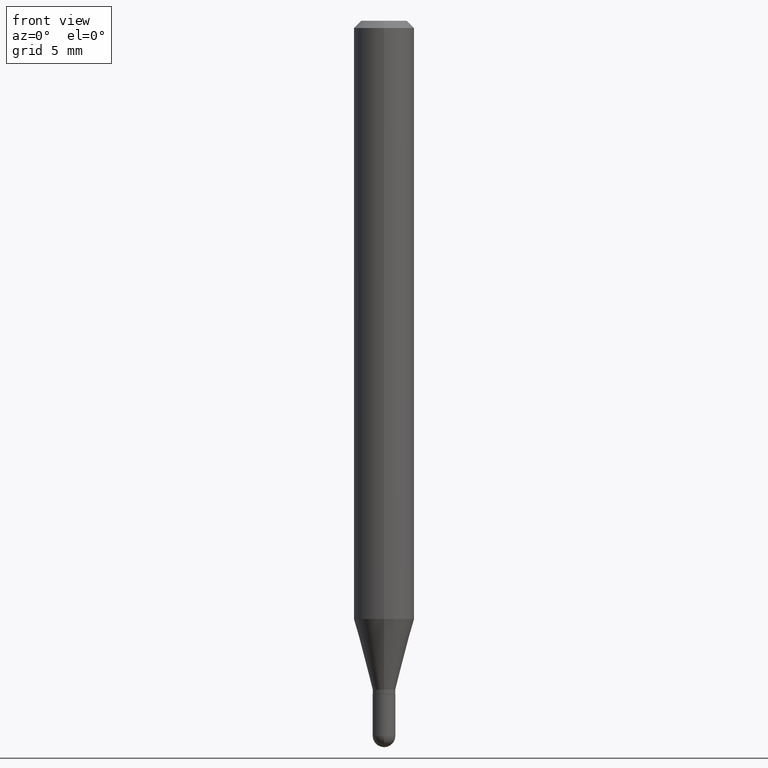
[diagram: clean part render]
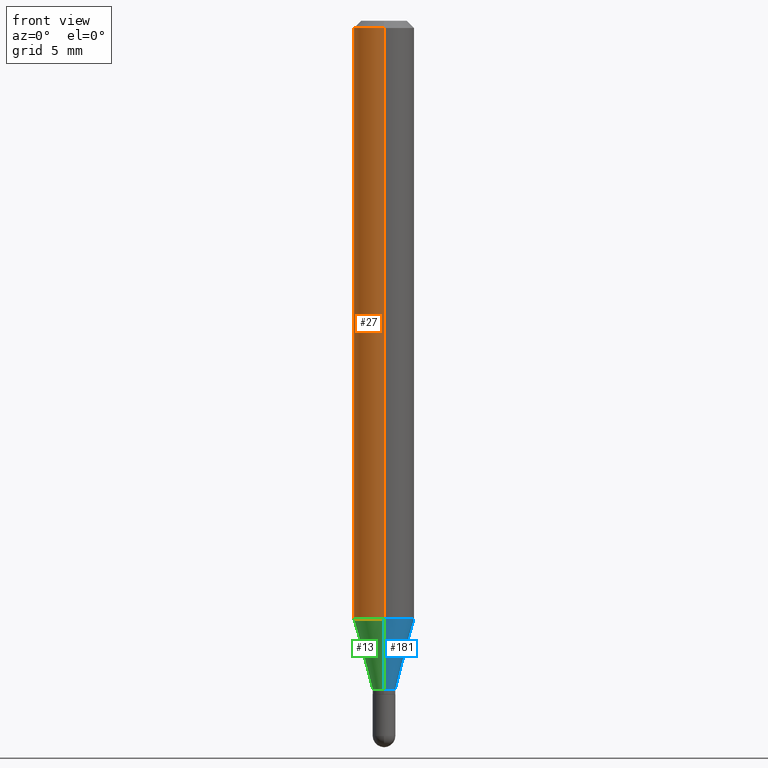
[diagram: same view with three faces highlighted in distinct colors, each labeled with its STEP entity id]
A machine part, front view with three faces highlighted in distinct colors.
Their STEP definitions:

[orange] entity #27 — the highlighted cylindrical surface (edge-blend (fillet) strip) has radius 1.5875 mm, axis along (-0, 0, 1).
#9 = DIRECTION ( 'NONE',  ( -2.445355371012872805E-29, 3.491643784466156312E-15, 1.000000000000000000 ) ) ;
#17 = VECTOR ( 'NONE', #186, 39.37007874015748143 ) ;
#27 = ADVANCED_FACE ( 'NONE', ( #443 ), #206, .T. ) ;
#54 = DIRECTION ( 'NONE',  ( -2.445355371012872805E-29, 3.491643784466156312E-15, 1.000000000000000000 ) ) ;
#76 = CARTESIAN_POINT ( 'NONE',  ( 3.020658028844344291E-29, -4.313099828530658848E-15, -1.235263415964436895 ) ) ;
#91 = DIRECTION ( 'NONE',  ( -6.982962677686265133E-15, -1.000000000000000000, 3.491643784466155918E-15 ) ) ;
#95 = CIRCLE ( 'NONE', #409, 0.06250000000000001388 ) ;
#97 = VECTOR ( 'NONE', #54, 39.37007874015748143 ) ;
#121 = VERTEX_POINT ( 'NONE', #122 ) ;
#122 = CARTESIAN_POINT ( 'NONE',  ( -4.364351673553615941E-16, -0.06250000000000432987, -1.235263415964436673 ) ) ;
#159 = EDGE_CURVE ( 'NONE', #121, #190, #315, .T. ) ;
#164 = CARTESIAN_POINT ( 'NONE',  ( -4.364351673553916694E-16, -0.06250000000000001388, 2.182277365291347942E-16 ) ) ;
#186 = DIRECTION ( 'NONE',  ( -2.445355371012872805E-29, 3.491643784466156312E-15, 1.000000000000000000 ) ) ;
#188 = CARTESIAN_POINT ( 'NONE',  ( 4.440892098500626162E-16, 0.06250000000000001388, -2.182277365291347942E-16 ) ) ;
#190 = VERTEX_POINT ( 'NONE', #260 ) ;
#193 = VERTEX_POINT ( 'NONE', #371 ) ;
#206 = CYLINDRICAL_SURFACE ( 'NONE', #419, 0.06250000000000001388 ) ;
#218 = DIRECTION ( 'NONE',  ( -2.445355371012872805E-29, 3.491643784466156312E-15, 1.000000000000000000 ) ) ;
#222 = DIRECTION ( 'NONE',  ( -6.982962677686265922E-15, -1.000000000000000000, 3.483106191921934765E-15 ) ) ;
#225 = ORIENTED_EDGE ( 'NONE', *, *, #381, .T. ) ;
#229 = DIRECTION ( 'NONE',  ( -2.445355371012872805E-29, 3.491643784466156312E-15, 1.000000000000000000 ) ) ;
#231 = CARTESIAN_POINT ( 'NONE',  ( 4.440892098500924943E-16, 0.06249999999999566319, -1.235263415964437339 ) ) ;
#246 = CARTESIAN_POINT ( 'NONE',  ( 0.000000000000000000, 0.000000000000000000, 0.000000000000000000 ) ) ;
#260 = CARTESIAN_POINT ( 'NONE',  ( -4.364351673553913736E-16, -0.06250000000000006939, -0.01500000000000056496 ) ) ;
#264 = EDGE_CURVE ( 'NONE', #193, #190, #95, .T. ) ;
#266 = CARTESIAN_POINT ( 'NONE',  ( 3.668033056519500975E-31, -5.237465676699508819E-17, -0.01500000000000078354 ) ) ;
#268 = CIRCLE ( 'NONE', #294, 0.06250000000000000000 ) ;
#284 = VERTEX_POINT ( 'NONE', #231 ) ;
#294 = AXIS2_PLACEMENT_3D ( 'NONE', #76, #229, #429 ) ;
#304 = LINE ( 'NONE', #188, #17 ) ;
#315 = LINE ( 'NONE', #164, #97 ) ;
#347 = ORIENTED_EDGE ( 'NONE', *, *, #159, .T. ) ;
#364 = EDGE_CURVE ( 'NONE', #284, #193, #304, .T. ) ;
#371 = CARTESIAN_POINT ( 'NONE',  ( 4.440892098500930859E-16, 0.06249999999999996531, -0.01500000000000100038 ) ) ;
#381 = EDGE_CURVE ( 'NONE', #284, #121, #268, .T. ) ;
#398 = ORIENTED_EDGE ( 'NONE', *, *, #364, .F. ) ;
#409 = AXIS2_PLACEMENT_3D ( 'NONE', #266, #218, #222 ) ;
#419 = AXIS2_PLACEMENT_3D ( 'NONE', #246, #9, #91 ) ;
#429 = DIRECTION ( 'NONE',  ( -6.982962677686265922E-15, -1.000000000000000000, 4.370956789862821150E-15 ) ) ;
#443 = FACE_OUTER_BOUND ( 'NONE', #472, .T. ) ;
#472 = EDGE_LOOP ( 'NONE', ( #398, #225, #347, #507 ) ) ;
#507 = ORIENTED_EDGE ( 'NONE', *, *, #264, .F. ) ;

[blue] entity #181 — the highlighted conical surface has half-angle 15 deg.
#53 = VERTEX_POINT ( 'NONE', #201 ) ;
#65 = EDGE_CURVE ( 'NONE', #335, #53, #495, .T. ) ;
#82 = ORIENTED_EDGE ( 'NONE', *, *, #108, .F. ) ;
#90 = CARTESIAN_POINT ( 'NONE',  ( 3.377035767368778363E-29, -4.821960066347763287E-15, -1.381000000000000449 ) ) ;
#92 = DIRECTION ( 'NONE',  ( -6.982962677686265922E-15, -1.000000000000000000, 0.000000000000000000 ) ) ;
#105 = LINE ( 'NONE', #296, #445 ) ;
#108 = EDGE_CURVE ( 'NONE', #121, #284, #321, .T. ) ;
#120 = AXIS2_PLACEMENT_3D ( 'NONE', #90, #320, #273 ) ;
#121 = VERTEX_POINT ( 'NONE', #122 ) ;
#122 = CARTESIAN_POINT ( 'NONE',  ( -4.364351673553615941E-16, -0.06250000000000432987, -1.235263415964436673 ) ) ;
#126 = FACE_OUTER_BOUND ( 'NONE', #234, .T. ) ;
#128 = ORIENTED_EDGE ( 'NONE', *, *, #65, .T. ) ;
#139 = DIRECTION ( 'NONE',  ( -1.807323732225330534E-15, -0.2588190451025182415, 0.9659258262890689783 ) ) ;
#180 = ORIENTED_EDGE ( 'NONE', *, *, #226, .F. ) ;
#181 = ADVANCED_FACE ( 'NONE', ( #126 ), #361, .T. ) ;
#201 = CARTESIAN_POINT ( 'NONE',  ( 3.053557406929357877E-16, 0.02344999999999537385, -1.381000000000000449 ) ) ;
#226 = EDGE_CURVE ( 'NONE', #335, #121, #105, .T. ) ;
#227 = DIRECTION ( 'NONE',  ( -6.982962677686265922E-15, -1.000000000000000000, 4.370956789862821150E-15 ) ) ;
#231 = CARTESIAN_POINT ( 'NONE',  ( 4.440892098500924943E-16, 0.06249999999999566319, -1.235263415964437339 ) ) ;
#234 = EDGE_LOOP ( 'NONE', ( #128, #353, #82, #180 ) ) ;
#245 = VECTOR ( 'NONE', #451, 39.37007874015748143 ) ;
#255 = CARTESIAN_POINT ( 'NONE',  ( 3.020658028844344291E-29, -4.313099828530658848E-15, -1.235263415964436895 ) ) ;
#263 = AXIS2_PLACEMENT_3D ( 'NONE', #493, #486, #92 ) ;
#273 = DIRECTION ( 'NONE',  ( -6.982962677686265922E-15, -1.000000000000000000, 0.000000000000000000 ) ) ;
#284 = VERTEX_POINT ( 'NONE', #231 ) ;
#292 = DIRECTION ( 'NONE',  ( -2.445355371012872805E-29, 3.491643784466156312E-15, 1.000000000000000000 ) ) ;
#296 = CARTESIAN_POINT ( 'NONE',  ( -1.637504747917105586E-16, -0.02345000000000501891, -1.381000000000000449 ) ) ;
#313 = AXIS2_PLACEMENT_3D ( 'NONE', #255, #292, #227 ) ;
#320 = DIRECTION ( 'NONE',  ( -2.445355371012872805E-29, 3.491643784466156312E-15, 1.000000000000000000 ) ) ;
#321 = CIRCLE ( 'NONE', #313, 0.06250000000000000000 ) ;
#335 = VERTEX_POINT ( 'NONE', #511 ) ;
#337 = LINE ( 'NONE', #446, #245 ) ;
#353 = ORIENTED_EDGE ( 'NONE', *, *, #407, .T. ) ;
#361 = CONICAL_SURFACE ( 'NONE', #120, 0.02345000000000019638, 0.2617993877991502960 ) ;
#407 = EDGE_CURVE ( 'NONE', #53, #284, #337, .T. ) ;
#445 = VECTOR ( 'NONE', #139, 39.37007874015748143 ) ;
#446 = CARTESIAN_POINT ( 'NONE',  ( 1.666222715357786128E-16, 0.02344999999999537385, -1.381000000000000449 ) ) ;
#451 = DIRECTION ( 'NONE',  ( 1.839019923739600710E-15, 0.2588190451025250138, 0.9659258262890670910 ) ) ;
#486 = DIRECTION ( 'NONE',  ( -2.445355371012872805E-29, 3.491643784466156312E-15, 1.000000000000000000 ) ) ;
#493 = CARTESIAN_POINT ( 'NONE',  ( 3.377035767368778363E-29, -4.821960066347763287E-15, -1.381000000000000449 ) ) ;
#495 = CIRCLE ( 'NONE', #263, 0.02345000000000019638 ) ;
#511 = CARTESIAN_POINT ( 'NONE',  ( -1.637504747917105586E-16, -0.02345000000000501891, -1.381000000000000449 ) ) ;

[green] entity #13 — the highlighted conical surface has half-angle 15 deg.
#4 = EDGE_CURVE ( 'NONE', #53, #335, #6, .T. ) ;
#6 = CIRCLE ( 'NONE', #51, 0.02345000000000019638 ) ;
#13 = ADVANCED_FACE ( 'NONE', ( #129 ), #257, .T. ) ;
#15 = DIRECTION ( 'NONE',  ( -6.982962677686265922E-15, -1.000000000000000000, 0.000000000000000000 ) ) ;
#51 = AXIS2_PLACEMENT_3D ( 'NONE', #240, #93, #437 ) ;
#53 = VERTEX_POINT ( 'NONE', #201 ) ;
#69 = AXIS2_PLACEMENT_3D ( 'NONE', #322, #441, #15 ) ;
#76 = CARTESIAN_POINT ( 'NONE',  ( 3.020658028844344291E-29, -4.313099828530658848E-15, -1.235263415964436895 ) ) ;
#93 = DIRECTION ( 'NONE',  ( -2.445355371012872805E-29, 3.491643784466156312E-15, 1.000000000000000000 ) ) ;
#94 = ORIENTED_EDGE ( 'NONE', *, *, #226, .T. ) ;
#105 = LINE ( 'NONE', #296, #445 ) ;
#121 = VERTEX_POINT ( 'NONE', #122 ) ;
#122 = CARTESIAN_POINT ( 'NONE',  ( -4.364351673553615941E-16, -0.06250000000000432987, -1.235263415964436673 ) ) ;
#129 = FACE_OUTER_BOUND ( 'NONE', #272, .T. ) ;
#132 = ORIENTED_EDGE ( 'NONE', *, *, #4, .T. ) ;
#139 = DIRECTION ( 'NONE',  ( -1.807323732225330534E-15, -0.2588190451025182415, 0.9659258262890689783 ) ) ;
#141 = ORIENTED_EDGE ( 'NONE', *, *, #407, .F. ) ;
#154 = ORIENTED_EDGE ( 'NONE', *, *, #381, .F. ) ;
#201 = CARTESIAN_POINT ( 'NONE',  ( 3.053557406929357877E-16, 0.02344999999999537385, -1.381000000000000449 ) ) ;
#226 = EDGE_CURVE ( 'NONE', #335, #121, #105, .T. ) ;
#229 = DIRECTION ( 'NONE',  ( -2.445355371012872805E-29, 3.491643784466156312E-15, 1.000000000000000000 ) ) ;
#231 = CARTESIAN_POINT ( 'NONE',  ( 4.440892098500924943E-16, 0.06249999999999566319, -1.235263415964437339 ) ) ;
#240 = CARTESIAN_POINT ( 'NONE',  ( 3.377035767368778363E-29, -4.821960066347763287E-15, -1.381000000000000449 ) ) ;
#245 = VECTOR ( 'NONE', #451, 39.37007874015748143 ) ;
#257 = CONICAL_SURFACE ( 'NONE', #69, 0.02345000000000019638, 0.2617993877991502960 ) ;
#268 = CIRCLE ( 'NONE', #294, 0.06250000000000000000 ) ;
#272 = EDGE_LOOP ( 'NONE', ( #141, #132, #94, #154 ) ) ;
#284 = VERTEX_POINT ( 'NONE', #231 ) ;
#294 = AXIS2_PLACEMENT_3D ( 'NONE', #76, #229, #429 ) ;
#296 = CARTESIAN_POINT ( 'NONE',  ( -1.637504747917105586E-16, -0.02345000000000501891, -1.381000000000000449 ) ) ;
#322 = CARTESIAN_POINT ( 'NONE',  ( 3.377035767368778363E-29, -4.821960066347763287E-15, -1.381000000000000449 ) ) ;
#335 = VERTEX_POINT ( 'NONE', #511 ) ;
#337 = LINE ( 'NONE', #446, #245 ) ;
#381 = EDGE_CURVE ( 'NONE', #284, #121, #268, .T. ) ;
#407 = EDGE_CURVE ( 'NONE', #53, #284, #337, .T. ) ;
#429 = DIRECTION ( 'NONE',  ( -6.982962677686265922E-15, -1.000000000000000000, 4.370956789862821150E-15 ) ) ;
#437 = DIRECTION ( 'NONE',  ( -6.982962677686265922E-15, -1.000000000000000000, 0.000000000000000000 ) ) ;
#441 = DIRECTION ( 'NONE',  ( -2.445355371012872805E-29, 3.491643784466156312E-15, 1.000000000000000000 ) ) ;
#445 = VECTOR ( 'NONE', #139, 39.37007874015748143 ) ;
#446 = CARTESIAN_POINT ( 'NONE',  ( 1.666222715357786128E-16, 0.02344999999999537385, -1.381000000000000449 ) ) ;
#451 = DIRECTION ( 'NONE',  ( 1.839019923739600710E-15, 0.2588190451025250138, 0.9659258262890670910 ) ) ;
#511 = CARTESIAN_POINT ( 'NONE',  ( -1.637504747917105586E-16, -0.02345000000000501891, -1.381000000000000449 ) ) ;